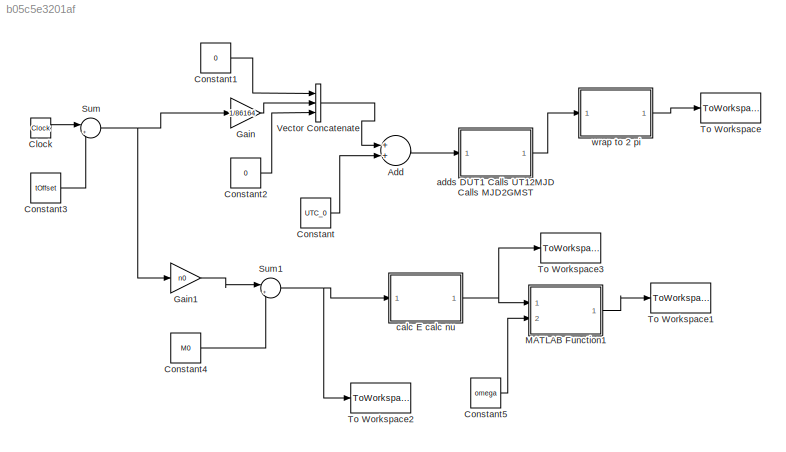
MODEL slx_b05c5e3201af
KIND model
CONFIG AbsTol = auto
CONFIG FixedStep = 1
CONFIG MaxStep = auto
CONFIG MinStep = auto
CONFIG RelTol = 1e-3
CONFIG SampleTimeConstraint = Unconstrained
CONFIG Solver = FixedStepDiscrete
CONFIG SolverMode = Auto
CONFIG SolverName = FixedStepDiscrete
CONFIG StartTime = 0.0
CONFIG StopTime = 86400
BLOCK [Sum] Add
  InputSameDT = off
  OutDataTypeStr = Inherit: Inherit via internal rule
  Ports = [2, 1]
  SaturateOnIntegerOverflow = off
BLOCK [Clock] Clock
BLOCK [Constant] Constant
  Value = UTC_0
BLOCK [Constant] Constant1
  Value = 0
BLOCK [Constant] Constant2
  Value = 0
BLOCK [Constant] Constant3
  Value = tOffset
BLOCK [Constant] Constant4
  Value = M0
BLOCK [Constant] Constant5
  Value = omega
BLOCK [Gain] Gain
  Gain = 1/86164
  OutDataTypeStr = Inherit: Inherit via internal rule
  ParamDataTypeStr = Inherit: Inherit via internal rule
  SaturateOnIntegerOverflow = off
BLOCK [Gain] Gain1
  Gain = n0
  OutDataTypeStr = Inherit: Inherit via internal rule
  ParamDataTypeStr = Inherit: Inherit via internal rule
  SaturateOnIntegerOverflow = off
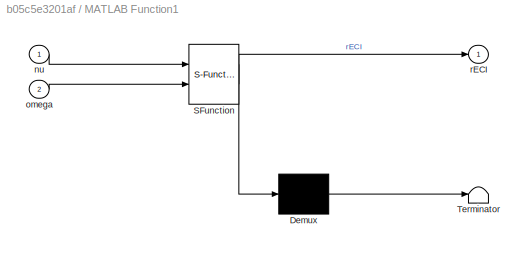
BLOCK [SubSystem] MATLAB Function1
  ErrorFcn = Stateflow.Translate.translate
  PermitHierarchicalResolution = ExplicitOnly
  Ports = [2, 1]
  RequestExecContextInheritance = off
  SFBlockType = MATLAB Function
  TreatAsAtomicUnit = on
  Variant = off
BLOCK [Demux] MATLAB Function1/ Demux 
  Outputs = 1
  Ports = [1, 1]
BLOCK [S-Function] MATLAB Function1/ SFunction 
  EnableBusSupport = on
  FunctionName = sf_sfun
  PortCounts = [2 2]
  Ports = [2, 2]
  SFunctionDeploymentMode = off
  Tag = Stateflow S-Function hw4_sim 3
BLOCK [Terminator] MATLAB Function1/ Terminator 
BLOCK [Inport] MATLAB Function1/nu
  IconDisplay = Port number
BLOCK [Inport] MATLAB Function1/omega
  IconDisplay = Port number
  Port = 2
BLOCK [Outport] MATLAB Function1/rECI
  IconDisplay = Port number
BLOCK [Sum] Sum
  IconShape = round
  InputSameDT = off
  Inputs = |++
  OutDataTypeStr = Inherit: Inherit via internal rule
  Ports = [2, 1]
  SaturateOnIntegerOverflow = off
BLOCK [Sum] Sum1
  IconShape = round
  InputSameDT = off
  Inputs = |++
  OutDataTypeStr = Inherit: Inherit via internal rule
  Ports = [2, 1]
  SaturateOnIntegerOverflow = off
BLOCK [ToWorkspace] To Workspace
  FixptAsFi = on
  MaxDataPoints = inf
  Ports = [1]
  SampleTime = -1
  Save2DSignal = 3-D array (concatenate along third dimension)
  VariableName = GMST
BLOCK [ToWorkspace] To Workspace1
  FixptAsFi = on
  MaxDataPoints = inf
  Ports = [1]
  SampleTime = -1
  Save2DSignal = 3-D array (concatenate along third dimension)
  VariableName = xECI
BLOCK [ToWorkspace] To Workspace2
  FixptAsFi = on
  MaxDataPoints = inf
  Ports = [1]
  SampleTime = -1
  Save2DSignal = 3-D array (concatenate along third dimension)
  VariableName = M
BLOCK [ToWorkspace] To Workspace3
  FixptAsFi = on
  MaxDataPoints = inf
  Ports = [1]
  SampleTime = -1
  Save2DSignal = 3-D array (concatenate along third dimension)
  VariableName = nuAll
BLOCK [Concatenate] Vector Concatenate
  NumInputs = 3
  Ports = [3, 1]
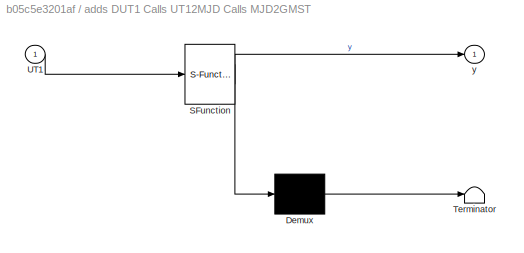
BLOCK [SubSystem] adds DUT1 Calls UT12MJD Calls MJD2GMST
  ErrorFcn = Stateflow.Translate.translate
  PermitHierarchicalResolution = ExplicitOnly
  Ports = [1, 1]
  RequestExecContextInheritance = off
  SFBlockType = MATLAB Function
  TreatAsAtomicUnit = on
  Variant = off
BLOCK [Demux] adds DUT1 Calls UT12MJD Calls MJD2GMST/ Demux 
  Outputs = 1
  Ports = [1, 1]
BLOCK [S-Function] adds DUT1 Calls UT12MJD Calls MJD2GMST/ SFunction 
  EnableBusSupport = on
  FunctionName = sf_sfun
  PortCounts = [1 2]
  Ports = [1, 2]
  SFunctionDeploymentMode = off
  Tag = Stateflow S-Function hw4_sim 2
BLOCK [Terminator] adds DUT1 Calls UT12MJD Calls MJD2GMST/ Terminator 
BLOCK [Inport] adds DUT1 Calls UT12MJD Calls MJD2GMST/UT1
  IconDisplay = Port number
BLOCK [Outport] adds DUT1 Calls UT12MJD Calls MJD2GMST/y
  IconDisplay = Port number
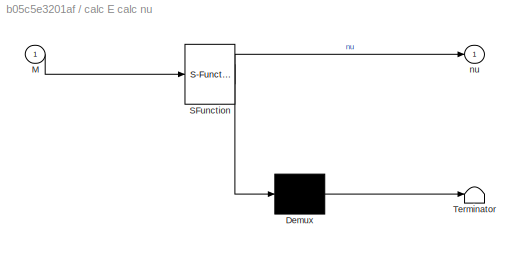
BLOCK [SubSystem] calc E calc nu
  ErrorFcn = Stateflow.Translate.translate
  PermitHierarchicalResolution = ExplicitOnly
  Ports = [1, 1]
  RequestExecContextInheritance = off
  SFBlockType = MATLAB Function
  TreatAsAtomicUnit = on
  Variant = off
BLOCK [Demux] calc E calc nu/ Demux 
  Outputs = 1
  Ports = [1, 1]
BLOCK [S-Function] calc E calc nu/ SFunction 
  EnableBusSupport = on
  FunctionName = sf_sfun
  PortCounts = [1 2]
  Ports = [1, 2]
  SFunctionDeploymentMode = off
  Tag = Stateflow S-Function hw4_sim 1
BLOCK [Terminator] calc E calc nu/ Terminator 
BLOCK [Inport] calc E calc nu/M
  IconDisplay = Port number
BLOCK [Outport] calc E calc nu/nu
  IconDisplay = Port number
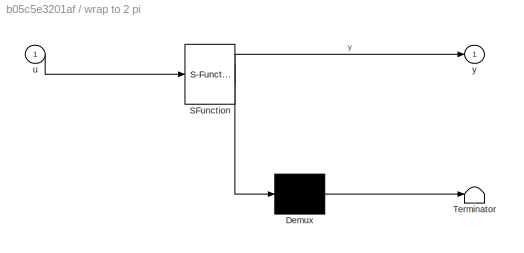
BLOCK [SubSystem] wrap to 2 pi
  ErrorFcn = Stateflow.Translate.translate
  PermitHierarchicalResolution = ExplicitOnly
  Ports = [1, 1]
  RequestExecContextInheritance = off
  SFBlockType = MATLAB Function
  TreatAsAtomicUnit = on
  Variant = off
BLOCK [Demux] wrap to 2 pi/ Demux 
  Outputs = 1
  Ports = [1, 1]
BLOCK [S-Function] wrap to 2 pi/ SFunction 
  EnableBusSupport = on
  FunctionName = sf_sfun
  PortCounts = [1 2]
  Ports = [1, 2]
  SFunctionDeploymentMode = off
  Tag = Stateflow S-Function hw4_sim 4
BLOCK [Terminator] wrap to 2 pi/ Terminator 
BLOCK [Inport] wrap to 2 pi/u
  IconDisplay = Port number
BLOCK [Outport] wrap to 2 pi/y
  IconDisplay = Port number
LINE Add:1 -> adds DUT1 Calls UT12MJD Calls MJD2GMST:1
LINE Clock:1 -> Sum:1
LINE Constant1:1 -> Vector Concatenate:1
LINE Constant2:1 -> Vector Concatenate:3
LINE Constant3:1 -> Sum:2
LINE Constant4:1 -> Sum1:2
LINE Constant5:1 -> MATLAB Function1:2
LINE Constant:1 -> Add:2
LINE Gain1:1 -> Sum1:1
LINE Gain:1 -> Vector Concatenate:2
LINE MATLAB Function1:1 -> To Workspace1:1
NET Sum1:1 -> To Workspace2:1, calc E calc nu:1
NET Sum:1 -> Gain1:1, Gain:1
LINE Vector Concatenate:1 -> Add:1
LINE adds DUT1 Calls UT12MJD Calls MJD2GMST:1 -> wrap to 2 pi:1
NET calc E calc nu:1 -> MATLAB Function1:1, To Workspace3:1
LINE wrap to 2 pi:1 -> To Workspace:1
note: NET lines group one-source signal fan-out (src -> all destinations, sorted); 1:1 wires keep LINE
CHART calc E
calc nu states=1 transitions=1
  STATE_LABEL 'eML_blk_kernel()'
  STATE_LABEL 'SCRIPT:\nfunction nu = fcn(M)\n%M in degrees\ne = .6908;\nE = calcE(M/180*pi, e, 1e-3); %output in rads\nnu = 2*atan2d(sqrt(1+e)*tan(E/2), sqrt(1-e)); %input in rads, output degrees\nend'
CHART adds DUT1
Calls UT12MJD
Calls MJD2GMST states=1 transitions=1
  STATE_LABEL 'eML_blk_kernel()'
  STATE_LABEL 'SCRIPT:\nfunction y = fcn(UT1)\n%u is calendar form\n% DUT1= (UT1-UTC) transmitted with time signals                         \n%              =  +0.5 seconds beginning 26 Jan 2017 at 0000 UTC  \nUT1(2) = UT1(2) + 0.5/86400; %defined offset\ny1 = UT12MJD(UT1);\ny = MJD2GMST(y1);\n%y in radians\nend'
CHART MATLAB Function1 states=1 transitions=1
  STATE_LABEL 'eML_blk_kernel()'
  STATE_LABEL 'SCRIPT:\nfunction rECI = fcn(nu, omega)\n%#codegen\na = 26521.2313; %km\ne = 0.6908;\nincl = 64.0353; %all angles in degrees\nOMEGA = 80.1299;\nrECI = OE2XV(a, e, incl, OMEGA, omega, nu);'
CHART wrap to 2 pi states=1 transitions=1
  STATE_LABEL 'eML_blk_kernel()'
  STATE_LABEL 'SCRIPT:\nfunction y = fcn(u)\n%#codegen\n\ny = wrapTo2Pi(u);'
